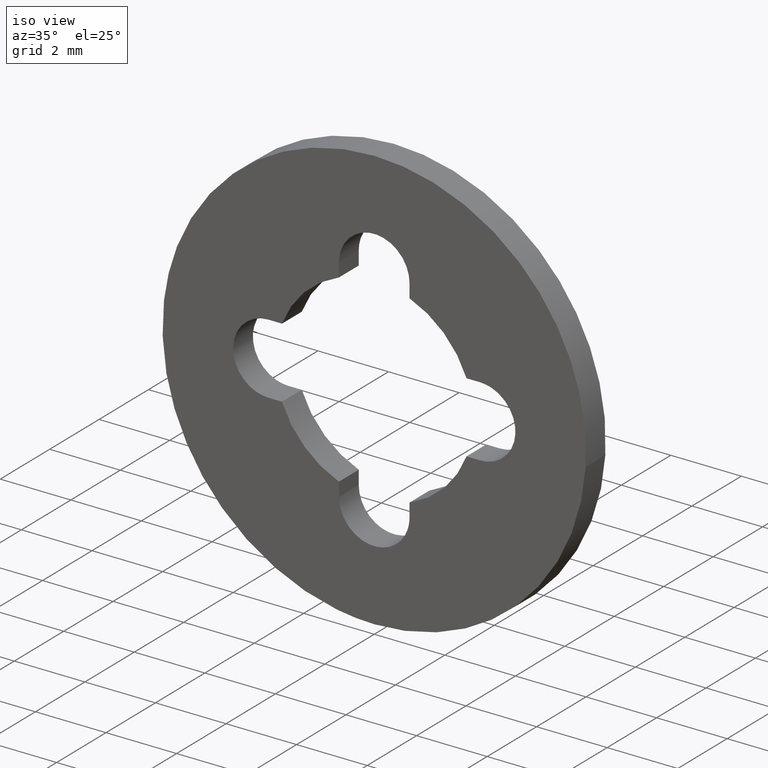
[diagram: clean part render]
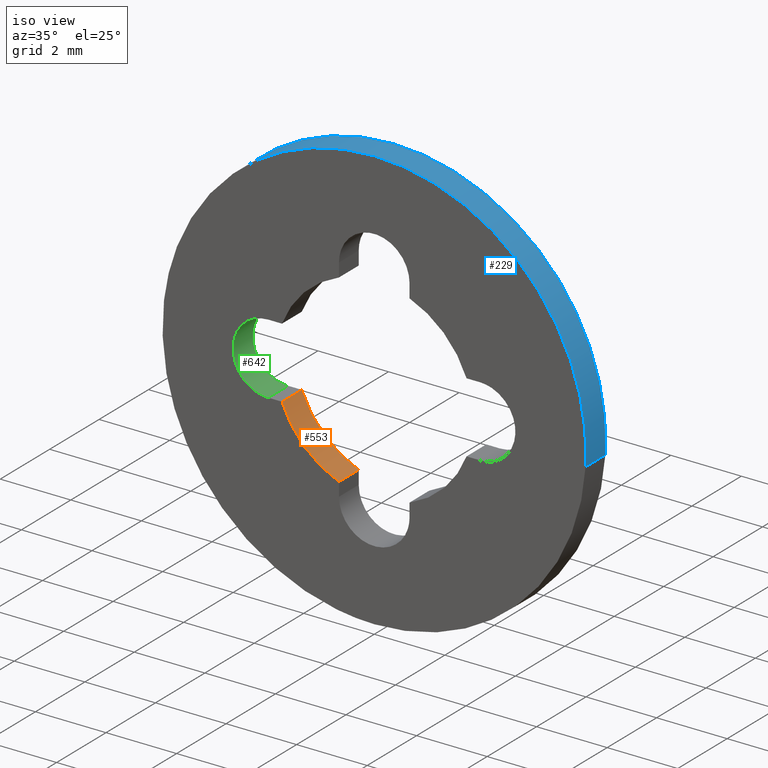
[diagram: same view with three faces highlighted in distinct colors, each labeled with its STEP entity id]
A machine part, iso view with three faces highlighted in distinct colors.
Their STEP definitions:

[orange] entity #553 — the highlighted face is a freeform B-spline surface patch.
#478=CARTESIAN_POINT('',(-0.999999999999982,0.0,-2.615339366124410));
#479=VERTEX_POINT('',#478);
#486=CARTESIAN_POINT('',(-0.999999999999982,0.800000000000023,-2.615339366124410));
#487=VERTEX_POINT('',#486);
#493=CARTESIAN_POINT('',(-0.999999999999982,0.800000000000023,-2.615339366124410));
#494=CARTESIAN_POINT('',(-0.999999999999982,0.0,-2.615339366124410));
#495=QUASI_UNIFORM_CURVE('',1,(#493,#494),.UNSPECIFIED.,.F.,.U.);
#496=EDGE_CURVE('',#487,#479,#495,.T.);
#501=CARTESIAN_POINT('',(-0.893549098200336,0.820000000000024,-2.653595675513766));
#502=CARTESIAN_POINT('',(-0.893549098200336,-0.020500000000001,-2.653595675513766));
#503=CARTESIAN_POINT('',(-2.210789541016130,0.820000000000024,-2.210039401793512));
#504=CARTESIAN_POINT('',(-2.210789541016130,-0.020500000000001,-2.210039401793512));
#505=CARTESIAN_POINT('',(-2.653898762762860,0.820000000000024,-0.892648506975595));
#506=CARTESIAN_POINT('',(-2.653898762762860,-0.020500000000001,-0.892648506975595));
#514=(BOUNDED_SURFACE()B_SPLINE_SURFACE(1,2,((#501,#503,#505),(#502,#504,#506)),.UNSPECIFIED.,.F.,.F.,.U.)B_SPLINE_SURFACE_WITH_KNOTS((2,2),(3,3),(0.0,1.0),(0.0,2.626894719128480),.UNSPECIFIED.)GEOMETRIC_REPRESENTATION_ITEM()RATIONAL_B_SPLINE_SURFACE(((0.999851358034276,0.891683071967494,0.991167330352593),(0.999851358034276,0.891683071967494,0.991167330352593)))REPRESENTATION_ITEM('')SURFACE());
#515=CARTESIAN_POINT('',(-2.615339366124400,0.0,-1.0));
#516=VERTEX_POINT('',#515);
#517=CARTESIAN_POINT('',(-2.615339366124404,0.0,-1.000000000000001));
#518=CARTESIAN_POINT('',(-2.168537779180702,0.0,-2.168537779180717));
#519=CARTESIAN_POINT('',(-0.999999999999983,0.0,-2.615339366124411));
#527=(BOUNDED_CURVE()B_SPLINE_CURVE(2,(#517,#518,#519),.UNSPECIFIED.,.F.,.U.)CURVE()GEOMETRIC_REPRESENTATION_ITEM()QUASI_UNIFORM_CURVE()RATIONAL_B_SPLINE_CURVE((1.0,0.913011065027585,1.0))REPRESENTATION_ITEM(''));
#528=EDGE_CURVE('',#516,#479,#527,.T.);
#529=ORIENTED_EDGE('',*,*,#528,.T.);
#530=ORIENTED_EDGE('',*,*,#496,.F.);
#531=CARTESIAN_POINT('',(-2.615339366124400,0.800000000000023,-1.0));
#532=VERTEX_POINT('',#531);
#533=CARTESIAN_POINT('',(-2.615339366124404,0.800000000000023,-1.000000000000001));
#534=CARTESIAN_POINT('',(-2.168537779180702,0.800000000000023,-2.168537779180717));
#535=CARTESIAN_POINT('',(-0.999999999999983,0.800000000000023,-2.615339366124411));
#543=(BOUNDED_CURVE()B_SPLINE_CURVE(2,(#533,#534,#535),.UNSPECIFIED.,.F.,.U.)CURVE()GEOMETRIC_REPRESENTATION_ITEM()QUASI_UNIFORM_CURVE()RATIONAL_B_SPLINE_CURVE((1.0,0.913011065027585,1.0))REPRESENTATION_ITEM(''));
#544=EDGE_CURVE('',#532,#487,#543,.T.);
#545=ORIENTED_EDGE('',*,*,#544,.F.);
#546=CARTESIAN_POINT('',(-2.615339366124400,0.800000000000023,-1.0));
#547=CARTESIAN_POINT('',(-2.615339366124400,0.0,-1.0));
#548=QUASI_UNIFORM_CURVE('',1,(#546,#547),.UNSPECIFIED.,.F.,.U.);
#549=EDGE_CURVE('',#532,#516,#548,.T.);
#550=ORIENTED_EDGE('',*,*,#549,.T.);
#551=EDGE_LOOP('',(#529,#530,#545,#550));
#552=FACE_OUTER_BOUND('',#551,.T.);
#553=ADVANCED_FACE('',(#552),#514,.F.);

[blue] entity #229 — the highlighted face is a freeform B-spline surface patch.
#66=CARTESIAN_POINT('',(-5.958057609161914,4.394370E-014,0.708201613873624));
#67=VERTEX_POINT('',#66);
#85=CARTESIAN_POINT('',(-5.958057603599299,0.800000000000023,0.708201660671828));
#86=VERTEX_POINT('',#85);
#87=CARTESIAN_POINT('',(-5.958057603599299,0.800000000000023,0.708201660671828));
#88=CARTESIAN_POINT('',(-5.958057609161914,4.394370E-014,0.708201613873624));
#89=QUASI_UNIFORM_CURVE('',1,(#87,#88),.UNSPECIFIED.,.F.,.U.);
#90=EDGE_CURVE('',#86,#67,#89,.T.);
#109=CARTESIAN_POINT('',(5.988808919991055,0.800000000000023,-0.366289120546966));
#110=VERTEX_POINT('',#109);
#124=CARTESIAN_POINT('',(5.988808921607088,2.891784E-014,-0.366289094124749));
#125=VERTEX_POINT('',#124);
#126=CARTESIAN_POINT('',(5.988808919991055,0.800000000000023,-0.366289120546966));
#127=CARTESIAN_POINT('',(5.988808921607088,2.891784E-014,-0.366289094124749));
#128=QUASI_UNIFORM_CURVE('',1,(#126,#127),.UNSPECIFIED.,.F.,.U.);
#129=EDGE_CURVE('',#110,#125,#128,.T.);
#147=CARTESIAN_POINT('',(5.988808790531200,0.820000000000024,-0.366291237209142));
#148=CARTESIAN_POINT('',(6.355100027740342,0.820000000000024,5.622517553322059));
#149=CARTESIAN_POINT('',(0.366291237209142,0.820000000000024,5.988808790531200));
#150=CARTESIAN_POINT('',(-5.289260945037006,0.820000000000024,6.334717180395164));
#151=CARTESIAN_POINT('',(-5.958057158181998,0.820000000000024,0.708205407940551));
#152=CARTESIAN_POINT('',(5.988808790531200,-0.020500000000001,-0.366291237209142));
#153=CARTESIAN_POINT('',(6.355100027740342,-0.020500000000001,5.622517553322059));
#154=CARTESIAN_POINT('',(0.366291237209142,-0.020500000000001,5.988808790531200));
#155=CARTESIAN_POINT('',(-5.289260945037006,-0.020500000000001,6.334717180395164));
#156=CARTESIAN_POINT('',(-5.958057158181998,-0.020500000000001,0.708205407940551));
#164=(BOUNDED_SURFACE()B_SPLINE_SURFACE(2,1,((#147,#152),(#148,#153),(#149,#154),(#150,#155),(#151,#156)),.UNSPECIFIED.,.F.,.F.,.U.)B_SPLINE_SURFACE_WITH_KNOTS((3,2,3),(2,2),(0.0,9.941125496954278,19.484605974030391),(0.0,1.0),.UNSPECIFIED.)GEOMETRIC_REPRESENTATION_ITEM()RATIONAL_B_SPLINE_SURFACE(((1.0,1.0),(0.707106781186548,0.707106781186548),(1.0,1.0),(0.718822509939086,0.718822509939086),(0.977505800795127,0.977505800795127)))REPRESENTATION_ITEM('')SURFACE());
#165=CARTESIAN_POINT('',(0.0,0.0,6.0));
#166=VERTEX_POINT('',#165);
#167=CARTESIAN_POINT('',(0.0,0.0,6.0));
#168=CARTESIAN_POINT('',(-5.329050573114072,0.0,6.0));
#169=CARTESIAN_POINT('',(-5.958057609161915,4.394370E-014,0.708201613873624));
#177=(BOUNDED_CURVE()B_SPLINE_CURVE(2,(#167,#168,#169),.UNSPECIFIED.,.F.,.U.)B_SPLINE_CURVE_WITH_KNOTS((3,3),(0.0,0.229562581136241),.UNSPECIFIED.)CURVE()GEOMETRIC_REPRESENTATION_ITEM()RATIONAL_B_SPLINE_CURVE((1.0,0.731050706767529,0.956026965128767))REPRESENTATION_ITEM(''));
#178=EDGE_CURVE('',#166,#67,#177,.T.);
#179=ORIENTED_EDGE('',*,*,#178,.F.);
#180=CARTESIAN_POINT('',(5.988808921607088,2.891784E-014,-0.366289094124749));
#181=CARTESIAN_POINT('',(6.000000000000001,0.0,-0.183315505244867));
#182=CARTESIAN_POINT('',(6.0,0.0,0.0));
#183=CARTESIAN_POINT('',(6.0,0.0,6.0));
#184=CARTESIAN_POINT('',(0.0,0.0,6.0));
#192=(BOUNDED_CURVE()B_SPLINE_CURVE(2,(#180,#181,#182,#183,#184),.UNSPECIFIED.,.F.,.U.)B_SPLINE_CURVE_WITH_KNOTS((3,2,3),(0.739333023987528,0.750000000000000,1.0),.UNSPECIFIED.)CURVE()GEOMETRIC_REPRESENTATION_ITEM()RATIONAL_B_SPLINE_CURVE((0.976072174005725,0.987502860242804,1.0,0.707106781186548,1.0))REPRESENTATION_ITEM(''));
#193=EDGE_CURVE('',#125,#166,#192,.T.);
#194=ORIENTED_EDGE('',*,*,#193,.F.);
#195=ORIENTED_EDGE('',*,*,#129,.F.);
#196=CARTESIAN_POINT('',(0.0,0.800000000000023,6.0));
#197=VERTEX_POINT('',#196);
#198=CARTESIAN_POINT('',(5.988808919991055,0.800000000000023,-0.366289120546966));
#199=CARTESIAN_POINT('',(6.0,0.800000000000023,-0.183315518493018));
#200=CARTESIAN_POINT('',(6.0,0.800000000000023,0.0));
#201=CARTESIAN_POINT('',(6.0,0.800000000000023,6.0));
#202=CARTESIAN_POINT('',(0.0,0.800000000000023,6.0));
#210=(BOUNDED_CURVE()B_SPLINE_CURVE(2,(#198,#199,#200,#201,#202),.UNSPECIFIED.,.F.,.U.)B_SPLINE_CURVE_WITH_KNOTS((3,2,3),(0.739333023226263,0.750000000000000,1.0),.UNSPECIFIED.)CURVE()GEOMETRIC_REPRESENTATION_ITEM()RATIONAL_B_SPLINE_CURVE((0.976072172374189,0.987502859350927,1.0,0.707106781186548,1.0))REPRESENTATION_ITEM(''));
#211=EDGE_CURVE('',#110,#197,#210,.T.);
#212=ORIENTED_EDGE('',*,*,#211,.T.);
#213=CARTESIAN_POINT('',(0.0,0.800000000000023,6.0));
#214=CARTESIAN_POINT('',(-5.329050530961814,0.800000000000023,6.000000000000001));
#215=CARTESIAN_POINT('',(-5.958057603599301,0.800000000000023,0.708201660671828));
#223=(BOUNDED_CURVE()B_SPLINE_CURVE(2,(#213,#214,#215),.UNSPECIFIED.,.F.,.U.)B_SPLINE_CURVE_WITH_KNOTS((3,3),(0.0,0.229562579808786),.UNSPECIFIED.)CURVE()GEOMETRIC_REPRESENTATION_ITEM()RATIONAL_B_SPLINE_CURVE((1.0,0.731050708322738,0.956026962526900))REPRESENTATION_ITEM(''));
#224=EDGE_CURVE('',#197,#86,#223,.T.);
#225=ORIENTED_EDGE('',*,*,#224,.T.);
#226=ORIENTED_EDGE('',*,*,#90,.T.);
#227=EDGE_LOOP('',(#179,#194,#195,#212,#225,#226));
#228=FACE_OUTER_BOUND('',#227,.T.);
#229=ADVANCED_FACE('',(#228),#164,.T.);

[green] entity #642 — the highlighted face is a freeform B-spline surface patch.
#559=CARTESIAN_POINT('',(-3.0,0.0,-1.0));
#560=VERTEX_POINT('',#559);
#567=CARTESIAN_POINT('',(-3.0,0.800000000000023,-1.0));
#568=VERTEX_POINT('',#567);
#574=CARTESIAN_POINT('',(-3.0,0.800000000000023,-1.0));
#575=CARTESIAN_POINT('',(-3.0,0.0,-1.0));
#576=QUASI_UNIFORM_CURVE('',1,(#574,#575),.UNSPECIFIED.,.F.,.U.);
#577=EDGE_CURVE('',#568,#560,#576,.T.);
#582=CARTESIAN_POINT('',(-2.973823051692126,0.820000000000024,-0.999657324975557));
#583=CARTESIAN_POINT('',(-2.973823051692126,-0.020500000000001,-0.999657324975557));
#584=CARTESIAN_POINT('',(-4.027242072842898,0.820000000000023,-1.027242072842902));
#585=CARTESIAN_POINT('',(-4.027242072842898,-0.020500000000001,-1.027242072842902));
#586=CARTESIAN_POINT('',(-3.999657324975557,0.820000000000024,0.026176948307872));
#587=CARTESIAN_POINT('',(-3.999657324975557,-0.020500000000001,0.026176948307872));
#588=CARTESIAN_POINT('',(-3.972072577108214,0.820000000000023,1.079595969458646));
#589=CARTESIAN_POINT('',(-3.972072577108214,-0.020500000000001,1.079595969458646));
#590=CARTESIAN_POINT('',(-2.921540904272156,0.820000000000024,0.996917333733128));
#591=CARTESIAN_POINT('',(-2.921540904272156,-0.020500000000001,0.996917333733128));
#599=(BOUNDED_SURFACE()B_SPLINE_SURFACE(1,2,((#582,#584,#586,#588,#590),(#583,#585,#587,#589,#591)),.UNSPECIFIED.,.F.,.F.,.U.)B_SPLINE_SURFACE_WITH_KNOTS((2,2),(3,2,3),(0.0,1.0),(0.0,1.0,2.0),.UNSPECIFIED.)GEOMETRIC_REPRESENTATION_ITEM()RATIONAL_B_SPLINE_SURFACE(((1.0,0.688354575693754,1.0,0.688354575693754,1.0),(1.0,0.688354575693754,1.0,0.688354575693754,1.0)))REPRESENTATION_ITEM('')SURFACE());
#600=CARTESIAN_POINT('',(-3.0,0.0,1.0));
#601=VERTEX_POINT('',#600);
#602=CARTESIAN_POINT('',(-3.0,0.0,1.0));
#603=CARTESIAN_POINT('',(-4.000000000000000,0.0,1.0));
#604=CARTESIAN_POINT('',(-4.0,0.0,0.0));
#605=CARTESIAN_POINT('',(-4.000000000000000,0.0,-1.0));
#606=CARTESIAN_POINT('',(-3.0,0.0,-1.0));
#614=(BOUNDED_CURVE()B_SPLINE_CURVE(2,(#602,#603,#604,#605,#606),.UNSPECIFIED.,.F.,.U.)B_SPLINE_CURVE_WITH_KNOTS((3,2,3),(0.0,0.500000000000000,1.0),.UNSPECIFIED.)CURVE()GEOMETRIC_REPRESENTATION_ITEM()RATIONAL_B_SPLINE_CURVE((1.0,0.707106781186548,1.0,0.707106781186548,1.0))REPRESENTATION_ITEM(''));
#615=EDGE_CURVE('',#601,#560,#614,.T.);
#616=ORIENTED_EDGE('',*,*,#615,.T.);
#617=ORIENTED_EDGE('',*,*,#577,.F.);
#618=CARTESIAN_POINT('',(-3.0,0.800000000000023,1.0));
#619=VERTEX_POINT('',#618);
#620=CARTESIAN_POINT('',(-3.0,0.800000000000023,1.0));
#621=CARTESIAN_POINT('',(-4.000000000000000,0.800000000000023,1.0));
#622=CARTESIAN_POINT('',(-4.0,0.800000000000023,0.0));
#623=CARTESIAN_POINT('',(-4.000000000000000,0.800000000000023,-1.0));
#624=CARTESIAN_POINT('',(-3.0,0.800000000000023,-1.0));
#632=(BOUNDED_CURVE()B_SPLINE_CURVE(2,(#620,#621,#622,#623,#624),.UNSPECIFIED.,.F.,.U.)B_SPLINE_CURVE_WITH_KNOTS((3,2,3),(0.0,0.500000000000000,1.0),.UNSPECIFIED.)CURVE()GEOMETRIC_REPRESENTATION_ITEM()RATIONAL_B_SPLINE_CURVE((1.0,0.707106781186548,1.0,0.707106781186548,1.0))REPRESENTATION_ITEM(''));
#633=EDGE_CURVE('',#619,#568,#632,.T.);
#634=ORIENTED_EDGE('',*,*,#633,.F.);
#635=CARTESIAN_POINT('',(-3.0,0.800000000000023,1.0));
#636=CARTESIAN_POINT('',(-3.0,0.0,1.0));
#637=QUASI_UNIFORM_CURVE('',1,(#635,#636),.UNSPECIFIED.,.F.,.U.);
#638=EDGE_CURVE('',#619,#601,#637,.T.);
#639=ORIENTED_EDGE('',*,*,#638,.T.);
#640=EDGE_LOOP('',(#616,#617,#634,#639));
#641=FACE_OUTER_BOUND('',#640,.T.);
#642=ADVANCED_FACE('',(#641),#599,.F.);